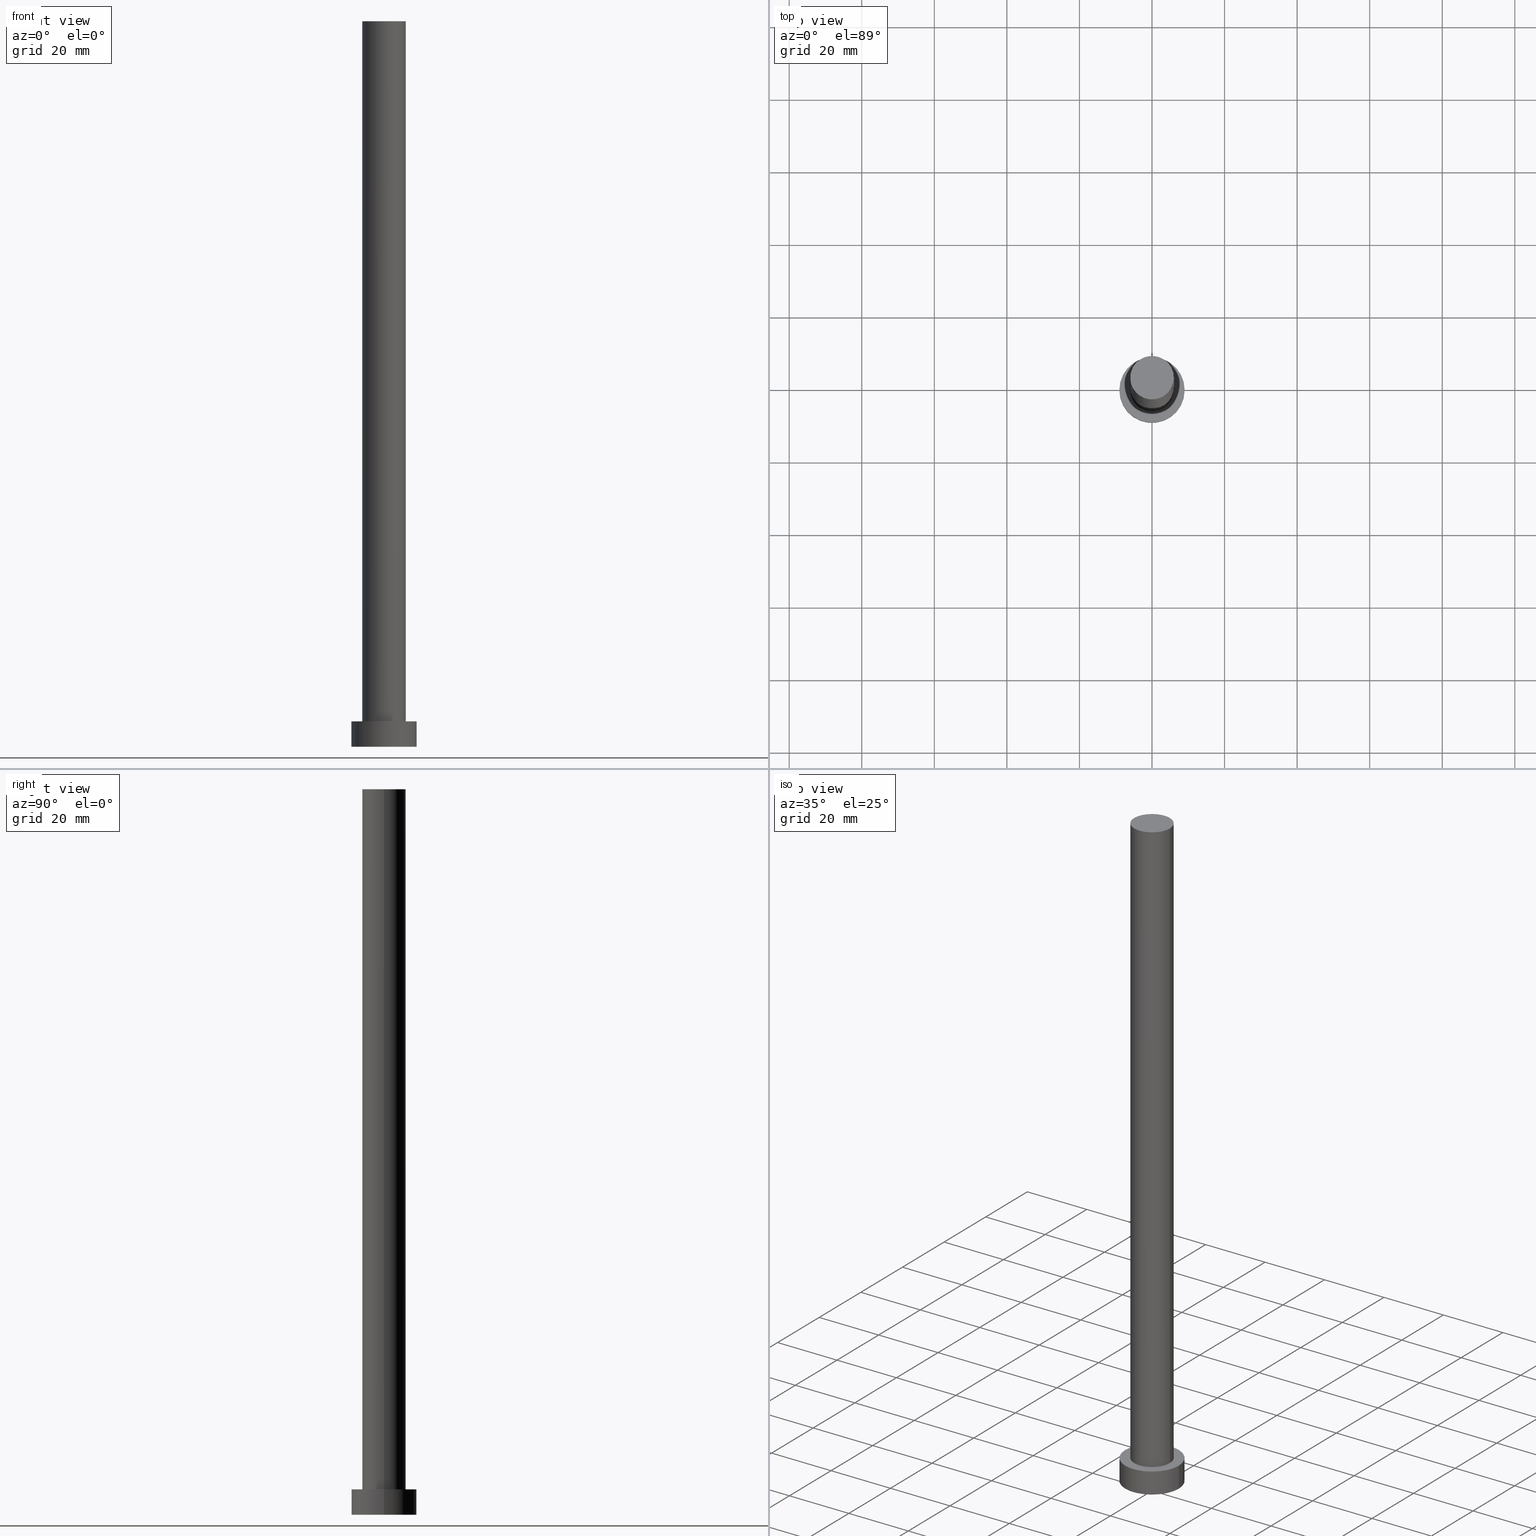
[diagram: canonical four-view strip — front | top / right | iso, engineering-drawing reading convention]
A machine part, canonical four-view strip (front | top / right | iso — engineering-drawing reading convention). The complete STEP part file that produces these views, byte-faithful:
ISO-10303-21;
HEADER;
FILE_DESCRIPTION (( 'STEP AP203' ),
    '1' );
FILE_NAME ('b955.STEP',
    '2023-02-13T09:55:27',
    ( '' ),
    ( '' ),
    'SwSTEP 2.0',
    'SolidWorks 2019',
    '' );
FILE_SCHEMA (( 'CONFIG_CONTROL_DESIGN' ));
ENDSEC;

DATA;
#1 = APPROVAL_DATE_TIME ( #45, #69 ) ;
#2 = PERSON_AND_ORGANIZATION ( #139, #148 ) ;
#3 = AXIS2_PLACEMENT_3D ( 'NONE', #233, #62, #126 ) ;
#4 = ORIENTED_EDGE ( 'NONE', *, *, #107, .F. ) ;
#5 = ORIENTED_EDGE ( 'NONE', *, *, #43, .F. ) ;
#6 = DIRECTION ( 'NONE',  ( 1.000000000000000000, 0.000000000000000000, 0.000000000000000000 ) ) ;
#7 = VERTEX_POINT ( 'NONE', #100 ) ;
#8 = EDGE_LOOP ( 'NONE', ( #88, #68, #219, #165 ) ) ;
#9 = MECHANICAL_CONTEXT ( 'NONE', #44, 'mechanical' ) ;
#10 = CARTESIAN_POINT ( 'NONE',  ( 6.000000000000000888, 7.347880794884120722E-16, 200.0000000000000000 ) ) ;
#11 = AXIS2_PLACEMENT_3D ( 'NONE', #209, #192, #178 ) ;
#12 = APPLICATION_PROTOCOL_DEFINITION ( 'international standard', 'config_control_design', 1994, #44 ) ;
#13 = AXIS2_PLACEMENT_3D ( 'NONE', #140, #59, #210 ) ;
#14 = LINE ( 'NONE', #10, #130 ) ;
#15 = COORDINATED_UNIVERSAL_TIME_OFFSET ( 1, 0, .AHEAD. ) ;
#16 = CARTESIAN_POINT ( 'NONE',  ( 0.000000000000000000, 0.000000000000000000, 200.0000000000000000 ) ) ;
#17 = LINE ( 'NONE', #161, #61 ) ;
#18 = AXIS2_PLACEMENT_3D ( 'NONE', #122, #74, #156 ) ;
#19 = LOCAL_TIME ( 10, 55, 27.00000000000000000, #42 ) ;
#20 = FACE_BOUND ( 'NONE', #222, .T. ) ;
#21 = EDGE_CURVE ( 'NONE', #115, #7, #48, .T. ) ;
#22 = PERSON_AND_ORGANIZATION_ROLE ( 'classification_officer' ) ;
#23 = CALENDAR_DATE ( 2023, 13, 2 ) ;
#24 = APPROVAL_STATUS ( 'not_yet_approved' ) ;
#25 = ADVANCED_FACE ( 'NONE', ( #104 ), #205, .T. ) ;
#26 = COORDINATED_UNIVERSAL_TIME_OFFSET ( 1, 0, .AHEAD. ) ;
#27 = VERTEX_POINT ( 'NONE', #230 ) ;
#28 = CLOSED_SHELL ( 'NONE', ( #226, #25, #182, #238, #234, #36, #221 ) ) ;
#29 = DIRECTION ( 'NONE',  ( 1.000000000000000000, 0.000000000000000000, 0.000000000000000000 ) ) ;
#30 = CC_DESIGN_APPROVAL ( #120, ( #212 ) ) ;
#31 = ORIENTED_EDGE ( 'NONE', *, *, #83, .F. ) ;
#32 = PLANE ( 'NONE',  #13 ) ;
#33 = DIRECTION ( 'NONE',  ( 0.000000000000000000, 0.000000000000000000, 1.000000000000000000 ) ) ;
#34 = PERSON_AND_ORGANIZATION ( #139, #148 ) ;
#35 = CARTESIAN_POINT ( 'NONE',  ( 0.000000000000000000, 0.000000000000000000, 7.000000000000000000 ) ) ;
#36 = ADVANCED_FACE ( 'NONE', ( #96 ), #250, .T. ) ;
#37 = CARTESIAN_POINT ( 'NONE',  ( 0.000000000000000000, 0.000000000000000000, 200.0000000000000000 ) ) ;
#38 = CYLINDRICAL_SURFACE ( 'NONE', #214, 9.000000000000000000 ) ;
#39 = CIRCLE ( 'NONE', #116, 6.000000000000000888 ) ;
#40 = PERSON_AND_ORGANIZATION_ROLE ( 'design_supplier' ) ;
#41 = DESIGN_CONTEXT ( 'detailed design', #184, 'design' ) ;
#42 = COORDINATED_UNIVERSAL_TIME_OFFSET ( 1, 0, .AHEAD. ) ;
#43 = EDGE_CURVE ( 'NONE', #7, #115, #39, .T. ) ;
#44 = APPLICATION_CONTEXT ( 'configuration controlled 3d designs of mechanical parts and assemblies' ) ;
#45 = DATE_AND_TIME ( #23, #19 ) ;
#46 = ORIENTED_EDGE ( 'NONE', *, *, #177, .F. ) ;
#47 = EDGE_LOOP ( 'NONE', ( #31, #204, #133, #198 ) ) ;
#48 = CIRCLE ( 'NONE', #82, 6.000000000000000888 ) ;
#49 = ORIENTED_EDGE ( 'NONE', *, *, #160, .T. ) ;
#50 =( NAMED_UNIT ( * ) SI_UNIT ( $, .STERADIAN. ) SOLID_ANGLE_UNIT ( ) );
#51 = VERTEX_POINT ( 'NONE', #190 ) ;
#52 = PERSON_AND_ORGANIZATION_ROLE ( 'design_owner' ) ;
#53 = AXIS2_PLACEMENT_3D ( 'NONE', #187, #200, #29 ) ;
#54 =( NAMED_UNIT ( * ) PLANE_ANGLE_UNIT ( ) SI_UNIT ( $, .RADIAN. ) );
#55 = DIRECTION ( 'NONE',  ( 1.000000000000000000, 0.000000000000000000, 0.000000000000000000 ) ) ;
#56 = CARTESIAN_POINT ( 'NONE',  ( 0.000000000000000000, 0.000000000000000000, 7.000000000000000000 ) ) ;
#57 = DIRECTION ( 'NONE',  ( -1.000000000000000000, 0.000000000000000000, 0.000000000000000000 ) ) ;
#58 = CC_DESIGN_PERSON_AND_ORGANIZATION_ASSIGNMENT ( #84, #147, ( #240 ) ) ;
#59 = DIRECTION ( 'NONE',  ( 0.000000000000000000, 0.000000000000000000, 1.000000000000000000 ) ) ;
#60 = DIRECTION ( 'NONE',  ( 0.000000000000000000, 0.000000000000000000, 1.000000000000000000 ) ) ;
#61 = VECTOR ( 'NONE', #105, 1000.000000000000000 ) ;
#62 = DIRECTION ( 'NONE',  ( -0.000000000000000000, -0.000000000000000000, -1.000000000000000000 ) ) ;
#63 = CC_DESIGN_PERSON_AND_ORGANIZATION_ASSIGNMENT ( #150, #40, ( #240 ) ) ;
#64 = CARTESIAN_POINT ( 'NONE',  ( -6.000000000000000888, 0.000000000000000000, 7.000000000000000000 ) ) ;
#65 = LOCAL_TIME ( 10, 55, 27.00000000000000000, #76 ) ;
#66 = APPROVAL_STATUS ( 'not_yet_approved' ) ;
#67 = ORIENTED_EDGE ( 'NONE', *, *, #21, .F. ) ;
#68 = ORIENTED_EDGE ( 'NONE', *, *, #160, .F. ) ;
#69 = APPROVAL ( #24, 'NEUR�EN�' ) ;
#70 = CARTESIAN_POINT ( 'NONE',  ( 9.000000000000000000, 1.102182119232617714E-15, 0.000000000000000000 ) ) ;
#71 = DIRECTION ( 'NONE',  ( 0.000000000000000000, 0.000000000000000000, 1.000000000000000000 ) ) ;
#72 = CARTESIAN_POINT ( 'NONE',  ( 0.000000000000000000, 0.000000000000000000, 7.000000000000000000 ) ) ;
#73 = DIRECTION ( 'NONE',  ( -0.000000000000000000, -0.000000000000000000, -1.000000000000000000 ) ) ;
#74 = DIRECTION ( 'NONE',  ( -0.000000000000000000, -0.000000000000000000, -1.000000000000000000 ) ) ;
#75 = FACE_OUTER_BOUND ( 'NONE', #171, .T. ) ;
#76 = COORDINATED_UNIVERSAL_TIME_OFFSET ( 1, 0, .AHEAD. ) ;
#77 = DIRECTION ( 'NONE',  ( 1.000000000000000000, 0.000000000000000000, 0.000000000000000000 ) ) ;
#78 = PERSON_AND_ORGANIZATION_ROLE ( 'creator' ) ;
#79 = DIRECTION ( 'NONE',  ( -0.000000000000000000, -0.000000000000000000, -1.000000000000000000 ) ) ;
#80 = PERSON_AND_ORGANIZATION ( #139, #148 ) ;
#81 = APPROVAL_DATE_TIME ( #199, #120 ) ;
#82 = AXIS2_PLACEMENT_3D ( 'NONE', #72, #141, #174 ) ;
#83 = EDGE_CURVE ( 'NONE', #51, #27, #201, .T. ) ;
#84 = PERSON_AND_ORGANIZATION ( #139, #148 ) ;
#85 = APPROVAL_ROLE ( '' ) ;
#86 = PERSON_AND_ORGANIZATION ( #139, #148 ) ;
#87 = ORIENTED_EDGE ( 'NONE', *, *, #255, .F. ) ;
#88 = ORIENTED_EDGE ( 'NONE', *, *, #97, .F. ) ;
#89 = DIRECTION ( 'NONE',  ( -0.000000000000000000, -0.000000000000000000, -1.000000000000000000 ) ) ;
#90 = ORIENTED_EDGE ( 'NONE', *, *, #164, .F. ) ;
#91 = LOCAL_TIME ( 10, 55, 27.00000000000000000, #15 ) ;
#92 = DIRECTION ( 'NONE',  ( 0.000000000000000000, 0.000000000000000000, 1.000000000000000000 ) ) ;
#93 = ORIENTED_EDGE ( 'NONE', *, *, #21, .T. ) ;
#94 = ORIENTED_EDGE ( 'NONE', *, *, #43, .T. ) ;
#95 = DIRECTION ( 'NONE',  ( 0.000000000000000000, 0.000000000000000000, 1.000000000000000000 ) ) ;
#96 = FACE_OUTER_BOUND ( 'NONE', #117, .T. ) ;
#97 = EDGE_CURVE ( 'NONE', #51, #244, #220, .T. ) ;
#98 = CIRCLE ( 'NONE', #223, 9.000000000000000000 ) ;
#99 = DIRECTION ( 'NONE',  ( 0.000000000000000000, 0.000000000000000000, 1.000000000000000000 ) ) ;
#100 = CARTESIAN_POINT ( 'NONE',  ( 6.000000000000000888, 7.347880794884120722E-16, 7.000000000000000000 ) ) ;
#101 = CC_DESIGN_APPROVAL ( #69, ( #240 ) ) ;
#102 = DIRECTION ( 'NONE',  ( 1.000000000000000000, 0.000000000000000000, -0.000000000000000000 ) ) ;
#103 = CALENDAR_DATE ( 2023, 13, 2 ) ;
#104 = FACE_OUTER_BOUND ( 'NONE', #47, .T. ) ;
#105 = DIRECTION ( 'NONE',  ( -0.000000000000000000, -0.000000000000000000, -1.000000000000000000 ) ) ;
#106 = AXIS2_PLACEMENT_3D ( 'NONE', #167, #95, #6 ) ;
#107 = EDGE_CURVE ( 'NONE', #136, #118, #137, .T. ) ;
#108 = CC_DESIGN_APPROVAL ( #129, ( #166 ) ) ;
#109 = FACE_OUTER_BOUND ( 'NONE', #241, .T. ) ;
#110 = COORDINATED_UNIVERSAL_TIME_OFFSET ( 1, 0, .AHEAD. ) ;
#111 = DATE_AND_TIME ( #253, #65 ) ;
#112 = EDGE_CURVE ( 'NONE', #244, #170, #98, .T. ) ;
#113 = DATE_TIME_ROLE ( 'classification_date' ) ;
#114 = CC_DESIGN_PERSON_AND_ORGANIZATION_ASSIGNMENT ( #34, #78, ( #166 ) ) ;
#115 = VERTEX_POINT ( 'NONE', #64 ) ;
#116 = AXIS2_PLACEMENT_3D ( 'NONE', #224, #60, #55 ) ;
#117 = EDGE_LOOP ( 'NONE', ( #189, #90, #168, #93 ) ) ;
#118 = VERTEX_POINT ( 'NONE', #157 ) ;
#119 = AXIS2_PLACEMENT_3D ( 'NONE', #37, #33, #102 ) ;
#120 = APPROVAL ( #66, 'NEUR�EN�' ) ;
#121 = CARTESIAN_POINT ( 'NONE',  ( 0.000000000000000000, 0.000000000000000000, 7.000000000000000000 ) ) ;
#122 = CARTESIAN_POINT ( 'NONE',  ( 0.000000000000000000, 0.000000000000000000, 200.0000000000000000 ) ) ;
#123 = AXIS2_PLACEMENT_3D ( 'NONE', #16, #145, #176 ) ;
#124 = DATE_AND_TIME ( #103, #91 ) ;
#125 = DIRECTION ( 'NONE',  ( -0.000000000000000000, -0.000000000000000000, -1.000000000000000000 ) ) ;
#126 = DIRECTION ( 'NONE',  ( -1.000000000000000000, 0.000000000000000000, 0.000000000000000000 ) ) ;
#127 = APPROVAL_PERSON_ORGANIZATION ( #80, #129, #211 ) ;
#128 = APPROVAL_STATUS ( 'not_yet_approved' ) ;
#129 = APPROVAL ( #128, 'NEUR�EN�' ) ;
#130 = VECTOR ( 'NONE', #73, 1000.000000000000000 ) ;
#131 = PERSON_AND_ORGANIZATION ( #139, #148 ) ;
#132 = CALENDAR_DATE ( 2023, 13, 2 ) ;
#133 = ORIENTED_EDGE ( 'NONE', *, *, #112, .T. ) ;
#134 = CIRCLE ( 'NONE', #11, 9.000000000000000000 ) ;
#135 = APPLICATION_PROTOCOL_DEFINITION ( 'international standard', 'config_control_design', 1994, #184 ) ;
#136 = VERTEX_POINT ( 'NONE', #228 ) ;
#137 = CIRCLE ( 'NONE', #53, 6.000000000000000888 ) ;
#138 = APPROVAL_PERSON_ORGANIZATION ( #2, #120, #85 ) ;
#139 = PERSON ( 'NEUR�EN�', 'NEUR�EN�', 'NEUR�EN�', ('NEUR�EN�'), ('NEUR�EN�'), ('NEUR�EN�') ) ;
#140 = CARTESIAN_POINT ( 'NONE',  ( 0.000000000000000000, 0.000000000000000000, 0.000000000000000000 ) ) ;
#141 = DIRECTION ( 'NONE',  ( 0.000000000000000000, 0.000000000000000000, 1.000000000000000000 ) ) ;
#142 = AXIS2_PLACEMENT_3D ( 'NONE', #35, #227, #57 ) ;
#143 = CARTESIAN_POINT ( 'NONE',  ( 0.000000000000000000, 0.000000000000000000, 0.000000000000000000 ) ) ;
#144 = MANIFOLD_SOLID_BREP ( 'P�idat vysunut�m3', #28 ) ;
#145 = DIRECTION ( 'NONE',  ( 0.000000000000000000, 0.000000000000000000, 1.000000000000000000 ) ) ;
#146 = LOCAL_TIME ( 10, 55, 27.00000000000000000, #26 ) ;
#147 = PERSON_AND_ORGANIZATION_ROLE ( 'creator' ) ;
#148 = ORGANIZATION ( 'NEUR�EN�', 'NEUR�EN�', '' ) ;
#149 = DATE_AND_TIME ( #213, #173 ) ;
#150 = PERSON_AND_ORGANIZATION ( #139, #148 ) ;
#151 = ORIENTED_EDGE ( 'NONE', *, *, #83, .T. ) ;
#152 = PERSON_AND_ORGANIZATION ( #139, #148 ) ;
#153 =( LENGTH_UNIT ( ) NAMED_UNIT ( * ) SI_UNIT ( .MILLI., .METRE. ) );
#154 = FACE_OUTER_BOUND ( 'NONE', #181, .T. ) ;
#155 = CC_DESIGN_DATE_AND_TIME_ASSIGNMENT ( #149, #113, ( #212 ) ) ;
#156 = DIRECTION ( 'NONE',  ( -1.000000000000000000, 0.000000000000000000, 0.000000000000000000 ) ) ;
#157 = CARTESIAN_POINT ( 'NONE',  ( -6.000000000000000888, 0.000000000000000000, 200.0000000000000000 ) ) ;
#158 = APPROVAL_PERSON_ORGANIZATION ( #86, #69, #237 ) ;
#159 = DIRECTION ( 'NONE',  ( -1.000000000000000000, 0.000000000000000000, 0.000000000000000000 ) ) ;
#160 = EDGE_CURVE ( 'NONE', #27, #51, #134, .T. ) ;
#161 = CARTESIAN_POINT ( 'NONE',  ( -9.000000000000000000, 0.000000000000000000, 7.000000000000000000 ) ) ;
#162 = CC_DESIGN_SECURITY_CLASSIFICATION ( #212, ( #240 ) ) ;
#163 = SECURITY_CLASSIFICATION_LEVEL ( 'unclassified' ) ;
#164 = EDGE_CURVE ( 'NONE', #118, #136, #218, .T. ) ;
#165 = ORIENTED_EDGE ( 'NONE', *, *, #255, .T. ) ;
#166 = PRODUCT_DEFINITION ( 'NEZN�M�', '', #240, #41 ) ;
#167 = CARTESIAN_POINT ( 'NONE',  ( 0.000000000000000000, 0.000000000000000000, 7.000000000000000000 ) ) ;
#168 = ORIENTED_EDGE ( 'NONE', *, *, #177, .T. ) ;
#169 = VECTOR ( 'NONE', #125, 1000.000000000000000 ) ;
#170 = VERTEX_POINT ( 'NONE', #232 ) ;
#171 = EDGE_LOOP ( 'NONE', ( #4, #216, #94, #46 ) ) ;
#172 = DIRECTION ( 'NONE',  ( 1.000000000000000000, 0.000000000000000000, -0.000000000000000000 ) ) ;
#173 = LOCAL_TIME ( 10, 55, 27.00000000000000000, #110 ) ;
#174 = DIRECTION ( 'NONE',  ( 1.000000000000000000, 0.000000000000000000, 0.000000000000000000 ) ) ;
#175 = FACE_OUTER_BOUND ( 'NONE', #202, .T. ) ;
#176 = DIRECTION ( 'NONE',  ( 1.000000000000000000, 0.000000000000000000, 0.000000000000000000 ) ) ;
#177 = EDGE_CURVE ( 'NONE', #118, #115, #208, .T. ) ;
#178 = DIRECTION ( 'NONE',  ( 1.000000000000000000, 0.000000000000000000, 0.000000000000000000 ) ) ;
#179 = PRODUCT_RELATED_PRODUCT_CATEGORY ( 'detail', '', ( #231 ) ) ;
#180 = ADVANCED_BREP_SHAPE_REPRESENTATION ( 'b955', ( #144, #252 ), #225 ) ;
#181 = EDGE_LOOP ( 'NONE', ( #87, #246 ) ) ;
#182 = ADVANCED_FACE ( 'NONE', ( #251 ), #38, .T. ) ;
#183 = CARTESIAN_POINT ( 'NONE',  ( 0.000000000000000000, 0.000000000000000000, 0.000000000000000000 ) ) ;
#184 = APPLICATION_CONTEXT ( 'configuration controlled 3d designs of mechanical parts and assemblies' ) ;
#185 = ORIENTED_EDGE ( 'NONE', *, *, #164, .T. ) ;
#186 = SHAPE_DEFINITION_REPRESENTATION ( #191, #180 ) ;
#187 = CARTESIAN_POINT ( 'NONE',  ( 0.000000000000000000, 0.000000000000000000, 200.0000000000000000 ) ) ;
#188 = EDGE_CURVE ( 'NONE', #136, #7, #14, .T. ) ;
#189 = ORIENTED_EDGE ( 'NONE', *, *, #188, .F. ) ;
#190 = CARTESIAN_POINT ( 'NONE',  ( 9.000000000000000000, 1.102182119232617714E-15, 7.000000000000000000 ) ) ;
#191 = PRODUCT_DEFINITION_SHAPE ( 'NONE', 'NONE',  #166 ) ;
#192 = DIRECTION ( 'NONE',  ( 0.000000000000000000, 0.000000000000000000, 1.000000000000000000 ) ) ;
#193 = EDGE_CURVE ( 'NONE', #27, #170, #17, .T. ) ;
#194 = PLANE ( 'NONE',  #119 ) ;
#195 = CC_DESIGN_DATE_AND_TIME_ASSIGNMENT ( #124, #197, ( #166 ) ) ;
#196 = AXIS2_PLACEMENT_3D ( 'NONE', #56, #99, #172 ) ;
#197 = DATE_TIME_ROLE ( 'creation_date' ) ;
#198 = ORIENTED_EDGE ( 'NONE', *, *, #193, .F. ) ;
#199 = DATE_AND_TIME ( #132, #146 ) ;
#200 = DIRECTION ( 'NONE',  ( 0.000000000000000000, 0.000000000000000000, 1.000000000000000000 ) ) ;
#201 = CIRCLE ( 'NONE', #106, 9.000000000000000000 ) ;
#202 = EDGE_LOOP ( 'NONE', ( #185, #215 ) ) ;
#203 = DIRECTION ( 'NONE',  ( 0.000000000000000000, 0.000000000000000000, 1.000000000000000000 ) ) ;
#204 = ORIENTED_EDGE ( 'NONE', *, *, #97, .T. ) ;
#205 = CYLINDRICAL_SURFACE ( 'NONE', #142, 9.000000000000000000 ) ;
#206 = PLANE ( 'NONE',  #196 ) ;
#207 = CC_DESIGN_PERSON_AND_ORGANIZATION_ASSIGNMENT ( #152, #52, ( #231 ) ) ;
#208 = LINE ( 'NONE', #254, #169 ) ;
#209 = CARTESIAN_POINT ( 'NONE',  ( 0.000000000000000000, 0.000000000000000000, 7.000000000000000000 ) ) ;
#210 = DIRECTION ( 'NONE',  ( 1.000000000000000000, 0.000000000000000000, -0.000000000000000000 ) ) ;
#211 = APPROVAL_ROLE ( '' ) ;
#212 = SECURITY_CLASSIFICATION ( '', '', #163 ) ;
#213 = CALENDAR_DATE ( 2023, 13, 2 ) ;
#214 = AXIS2_PLACEMENT_3D ( 'NONE', #121, #79, #159 ) ;
#215 = ORIENTED_EDGE ( 'NONE', *, *, #107, .T. ) ;
#216 = ORIENTED_EDGE ( 'NONE', *, *, #188, .T. ) ;
#217 = UNCERTAINTY_MEASURE_WITH_UNIT (LENGTH_MEASURE( 1.000000000000000082E-05 ), #153, 'distance_accuracy_value', 'NONE');
#218 = CIRCLE ( 'NONE', #123, 6.000000000000000888 ) ;
#219 = ORIENTED_EDGE ( 'NONE', *, *, #193, .T. ) ;
#220 = LINE ( 'NONE', #247, #239 ) ;
#221 = ADVANCED_FACE ( 'NONE', ( #175 ), #194, .T. ) ;
#222 = EDGE_LOOP ( 'NONE', ( #67, #5 ) ) ;
#223 = AXIS2_PLACEMENT_3D ( 'NONE', #183, #203, #77 ) ;
#224 = CARTESIAN_POINT ( 'NONE',  ( 0.000000000000000000, 0.000000000000000000, 7.000000000000000000 ) ) ;
#225 =( GEOMETRIC_REPRESENTATION_CONTEXT ( 3 ) GLOBAL_UNCERTAINTY_ASSIGNED_CONTEXT ( ( #217 ) ) GLOBAL_UNIT_ASSIGNED_CONTEXT ( ( #153, #54, #50 ) ) REPRESENTATION_CONTEXT ( 'NONE', 'WORKASPACE' ) );
#226 = ADVANCED_FACE ( 'NONE', ( #75 ), #248, .T. ) ;
#227 = DIRECTION ( 'NONE',  ( -0.000000000000000000, -0.000000000000000000, -1.000000000000000000 ) ) ;
#228 = CARTESIAN_POINT ( 'NONE',  ( 6.000000000000000888, 7.347880794884120722E-16, 200.0000000000000000 ) ) ;
#229 = DIRECTION ( 'NONE',  ( 1.000000000000000000, 0.000000000000000000, 0.000000000000000000 ) ) ;
#230 = CARTESIAN_POINT ( 'NONE',  ( -9.000000000000000000, 0.000000000000000000, 7.000000000000000000 ) ) ;
#231 = PRODUCT ( 'b955', 'b955', '', ( #9 ) ) ;
#232 = CARTESIAN_POINT ( 'NONE',  ( -9.000000000000000000, 0.000000000000000000, 0.000000000000000000 ) ) ;
#233 = CARTESIAN_POINT ( 'NONE',  ( 0.000000000000000000, 0.000000000000000000, 200.0000000000000000 ) ) ;
#234 = ADVANCED_FACE ( 'NONE', ( #154 ), #32, .F. ) ;
#235 = APPROVAL_DATE_TIME ( #111, #129 ) ;
#236 = AXIS2_PLACEMENT_3D ( 'NONE', #143, #92, #249 ) ;
#237 = APPROVAL_ROLE ( '' ) ;
#238 = ADVANCED_FACE ( 'NONE', ( #20, #109 ), #206, .T. ) ;
#239 = VECTOR ( 'NONE', #89, 1000.000000000000000 ) ;
#240 = PRODUCT_DEFINITION_FORMATION_WITH_SPECIFIED_SOURCE ( 'LIBOVOLN�', '', #231, .NOT_KNOWN. ) ;
#241 = EDGE_LOOP ( 'NONE', ( #49, #151 ) ) ;
#242 = CC_DESIGN_PERSON_AND_ORGANIZATION_ASSIGNMENT ( #131, #22, ( #212 ) ) ;
#243 = CARTESIAN_POINT ( 'NONE',  ( 0.000000000000000000, 0.000000000000000000, 0.000000000000000000 ) ) ;
#244 = VERTEX_POINT ( 'NONE', #70 ) ;
#245 = CIRCLE ( 'NONE', #236, 9.000000000000000000 ) ;
#246 = ORIENTED_EDGE ( 'NONE', *, *, #112, .F. ) ;
#247 = CARTESIAN_POINT ( 'NONE',  ( 9.000000000000000000, 1.102182119232617714E-15, 7.000000000000000000 ) ) ;
#248 = CYLINDRICAL_SURFACE ( 'NONE', #3, 6.000000000000000888 ) ;
#249 = DIRECTION ( 'NONE',  ( 1.000000000000000000, 0.000000000000000000, 0.000000000000000000 ) ) ;
#250 = CYLINDRICAL_SURFACE ( 'NONE', #18, 6.000000000000000888 ) ;
#251 = FACE_OUTER_BOUND ( 'NONE', #8, .T. ) ;
#252 = AXIS2_PLACEMENT_3D ( 'NONE', #243, #71, #229 ) ;
#253 = CALENDAR_DATE ( 2023, 13, 2 ) ;
#254 = CARTESIAN_POINT ( 'NONE',  ( -6.000000000000000888, 0.000000000000000000, 200.0000000000000000 ) ) ;
#255 = EDGE_CURVE ( 'NONE', #170, #244, #245, .T. ) ;
ENDSEC;
END-ISO-10303-21;
